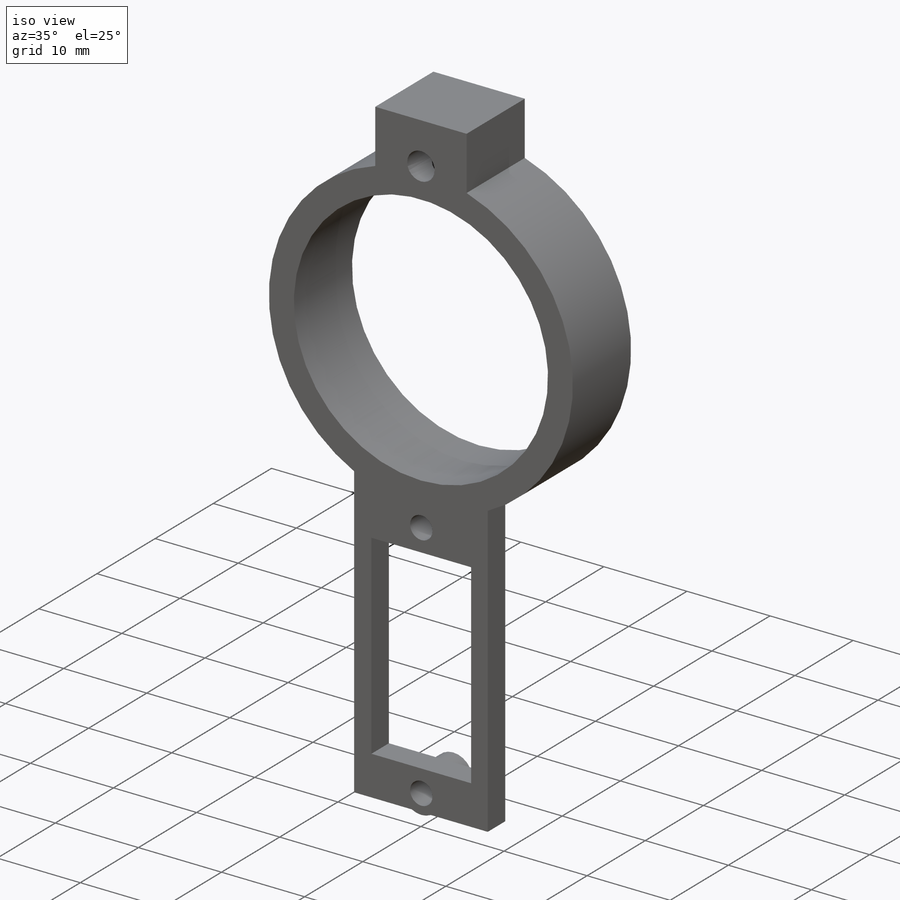
[diagram: iso view]
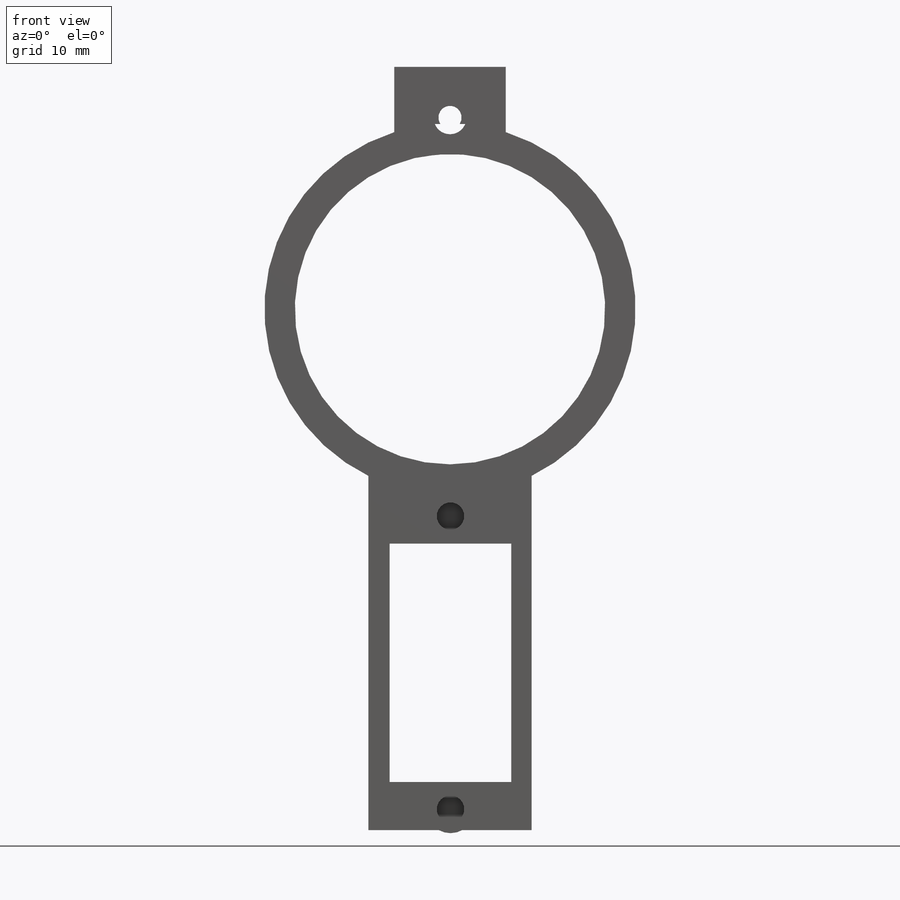
[diagram: front view]
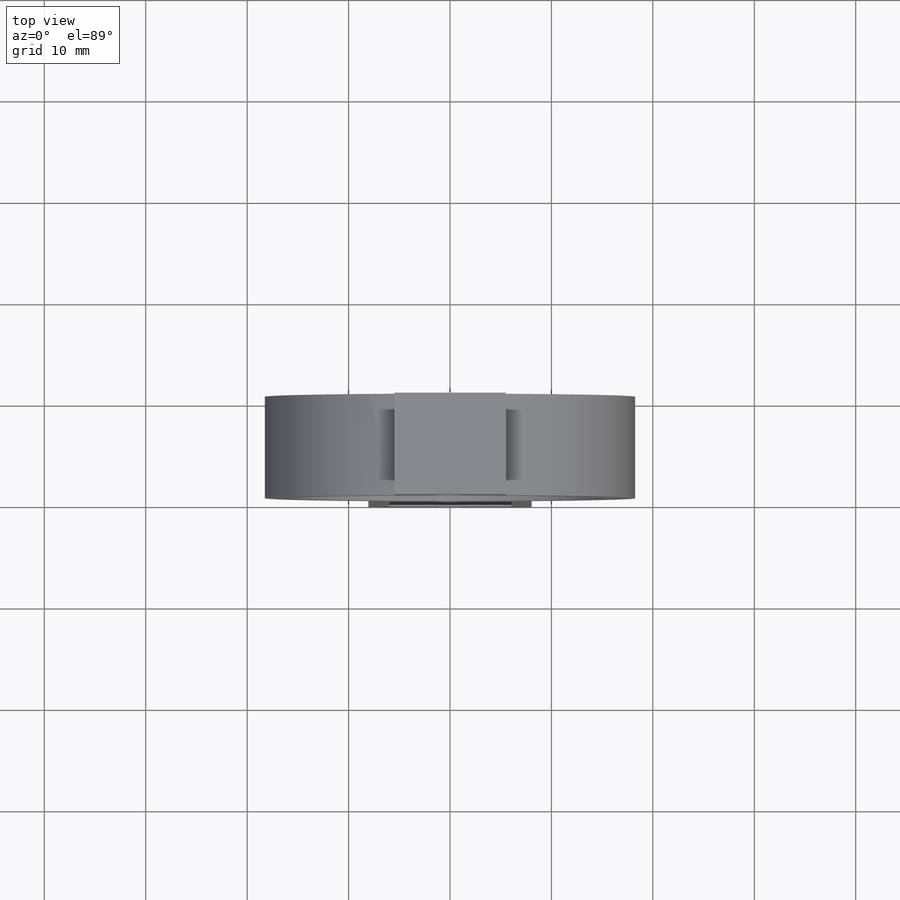
[diagram: top view]
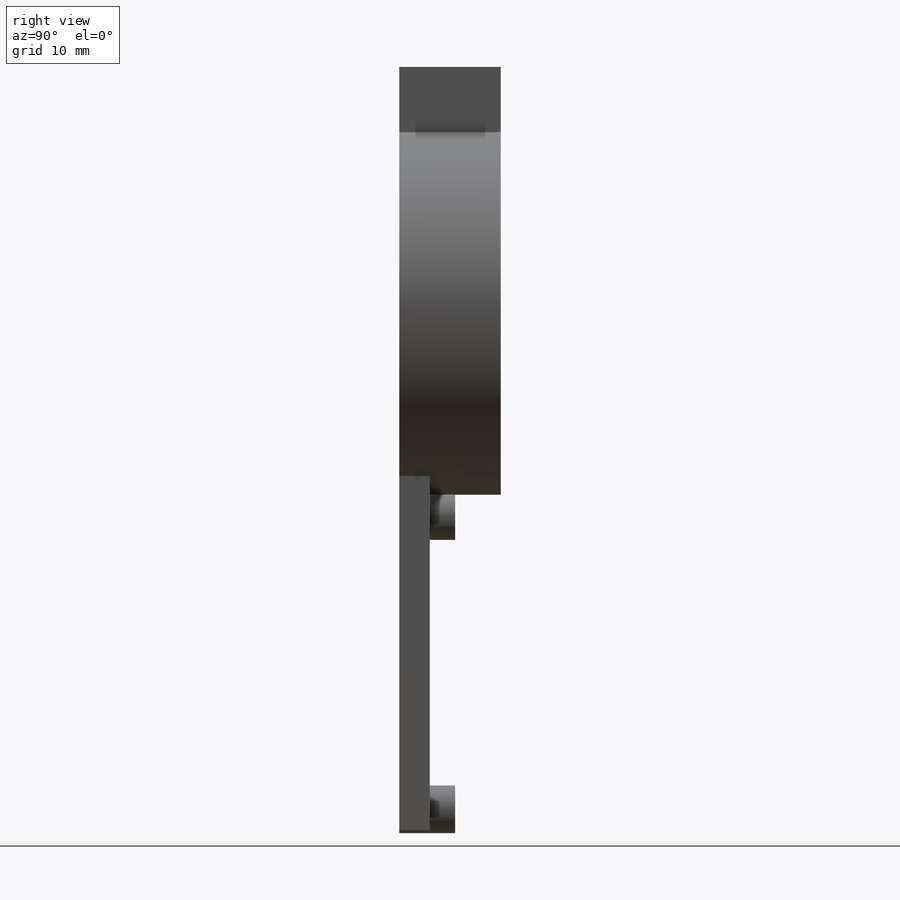
[diagram: right view]
SOLIDWORKS PART (.sldprt)
format: sldprt  version: not decoded by parser v0  size: 304,128 bytes
history: native  units: mm
features: sketch x13, extrude x7, cut_extrude x6, material x1 (+16 scaffold rows collapsed)
feature tree (43):
  scaffold x16  (default folders/planes/origin — collapsed)
  material  "Material <not specified>"
  sketch  "Sketch2"  dims[c1.D1=~19.398091mm c1.D2=30.6mm c2.D1=3.0mm]
  extrude  "Extrude1"  Depth=10mm
  sketch  "Sketch3"  dims[c1.D1=~0.743848mm c1.D4=~1.307985mm c1.D6=~1.307887mm c1.D7=1.05mm c2.D1=15.0mm c3.D1=360.0deg c4.D1=12.0mm c4.D2=23.5mm c4.D3=4.75mm c4.D4=2.0mm c5.D3=4.75mm c5.D5=3.0mm c5.D6=3.0mm c5.D7=3.0mm]
  extrude  "Extrude2"  Depth=3mm
  sketch  "Sketch4"  dims[D1=7.0mm]
  cut_extrude  "Extrude3"  [1 undecoded]
  sketch  "Sketch5"  dims[D1=8.0mm]
  extrude  "Extrude4"  [1 undecoded]
  sketch  "Sketch6"  dims[D1=1.0mm]
  cut_extrude  "Extrude5"  [1 undecoded]
  sketch  "Sketch7"
  extrude  "Extrude6"  Depth=2mm
  sketch  "Sketch8"
  extrude  "Extrude7"  Depth=2mm
  sketch  "Sketch9"
  extrude  "Extrude9"  Depth=1mm
  sketch  "Sketch10"  dims[D1=1.7mm]
  cut_extrude  "Extrude10"  Depth=4.2mm
  sketch  "Sketch11"  dims[D1=1.1mm]
  cut_extrude  "Extrude12"  [1 undecoded]
  sketch  "Sketch12"
  cut_extrude  "Extrude13"  [1 undecoded]
  sketch  "Sketch29"  dims[c1.D2=2.2mm c1.D1=2.7mm c2.D2=3.0mm c3.D2=3.0mm]
  extrude  "Extrude30"  Depth=5.5mm
  sketch  "Sketch31"  dims[D1=1.75mm]
  cut_extrude  "Extrude31"  Depth=3.5mm
decode coverage: 17 of 26 modeling features carry decoded parameters
note: ~ marks probable driven/reference dimensions
note: 5 parameter values undecoded
summary: no parameter record found for 5 features
note: suppression state not decoded; provenance and decode notes live in map.json
